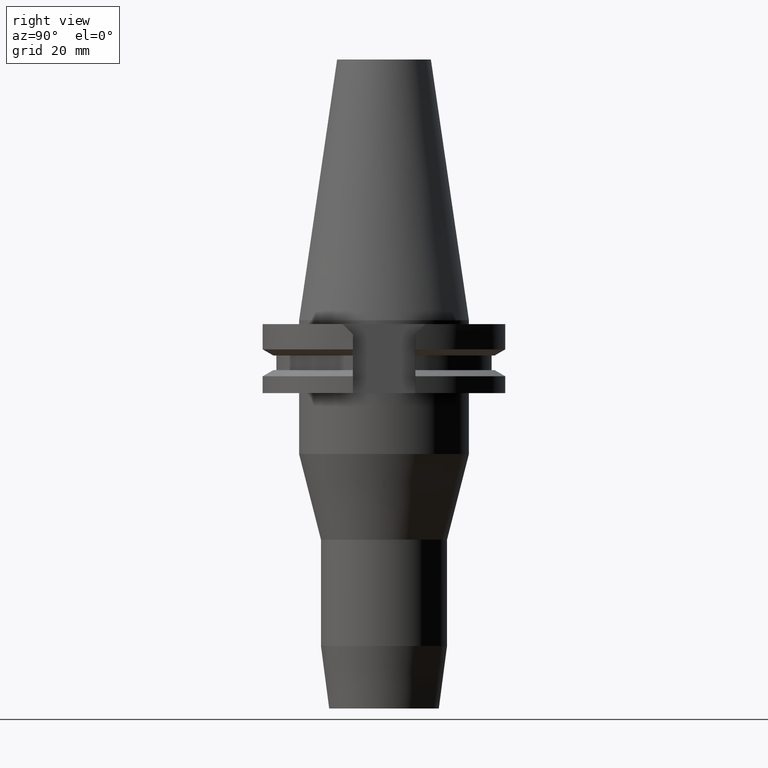
[diagram: clean part render]
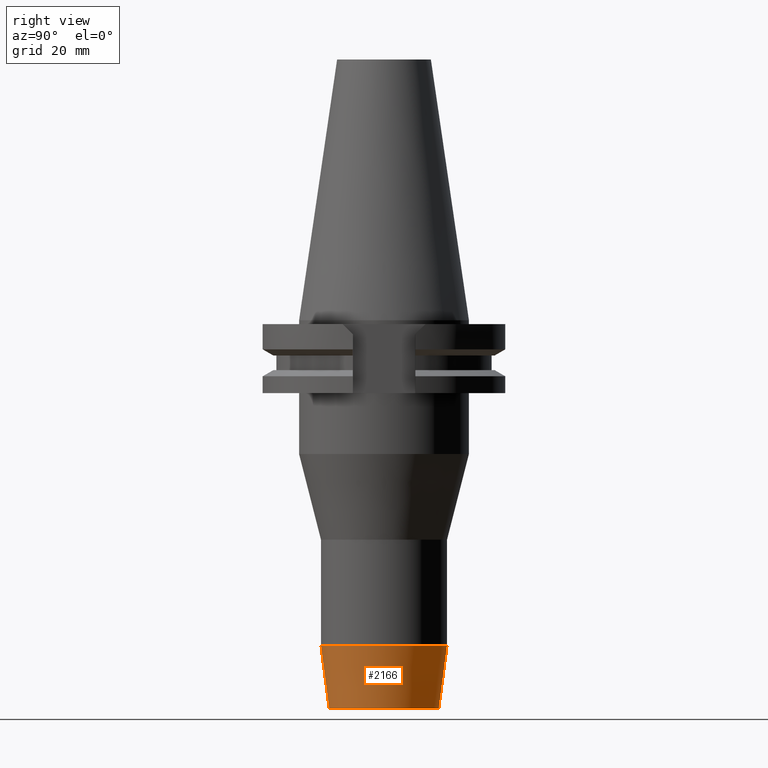
[diagram: same view with one face highlighted and labeled with its STEP entity id]
A machine part, right view. The second image highlights one B-rep face of the part: STEP entity #2166.
In plain terms, the highlighted conical surface has half-angle 7.5 deg.
Its self-contained STEP definition (entity closure, byte-faithful):
#922=DIRECTION('',(0.E0,-1.305261922200E-1,-9.914448613738E-1));
#923=VECTOR('',#922,1.650626562651E1);
#924=CARTESIAN_POINT('',(0.E0,1.65E1,-8.523494776413E1));
#925=LINE('',#924,#923);
#929=CARTESIAN_POINT('',(0.E0,0.E0,-8.523494776413E1));
#930=DIRECTION('',(0.E0,0.E0,1.E0));
#931=DIRECTION('',(0.E0,-1.E0,0.E0));
#932=AXIS2_PLACEMENT_3D('',#929,#930,#931);
#945=DIRECTION('',(0.E0,1.305261922200E-1,-9.914448613738E-1));
#946=VECTOR('',#945,1.650626562651E1);
#947=CARTESIAN_POINT('',(0.E0,-1.65E1,-8.523494776413E1));
#948=LINE('',#947,#946);
#952=CARTESIAN_POINT('',(0.E0,0.E0,-1.016E2));
#953=DIRECTION('',(0.E0,0.E0,1.E0));
#954=DIRECTION('',(0.E0,-1.E0,0.E0));
#955=AXIS2_PLACEMENT_3D('',#952,#953,#954);
#1314=CARTESIAN_POINT('',(0.E0,-1.43455E1,-1.016E2));
#1315=CARTESIAN_POINT('',(0.E0,1.43455E1,-1.016E2));
#1316=VERTEX_POINT('',#1314);
#1317=VERTEX_POINT('',#1315);
#1318=CARTESIAN_POINT('',(0.E0,1.65E1,-8.523494776413E1));
#1319=VERTEX_POINT('',#1318);
#1320=CARTESIAN_POINT('',(0.E0,-1.65E1,-8.523494776413E1));
#1321=VERTEX_POINT('',#1320);
#2152=CARTESIAN_POINT('',(0.E0,0.E0,-9.341747388207E1));
#2153=DIRECTION('',(0.E0,0.E0,1.E0));
#2154=DIRECTION('',(0.E0,1.E0,0.E0));
#2155=AXIS2_PLACEMENT_3D('',#2152,#2153,#2154);
#2156=CONICAL_SURFACE('',#2155,1.542275E1,7.5E0);
#2158=ORIENTED_EDGE('',*,*,#2157,.T.);
#2160=ORIENTED_EDGE('',*,*,#2159,.F.);
#2162=ORIENTED_EDGE('',*,*,#2161,.F.);
#2163=ORIENTED_EDGE('',*,*,#2145,.T.);
#2164=EDGE_LOOP('',(#2158,#2160,#2162,#2163));
#2165=FACE_OUTER_BOUND('',#2164,.F.);
#933=CIRCLE('',#932,1.65E1);
#956=CIRCLE('',#955,1.43455E1);
#2145=EDGE_CURVE('',#1321,#1319,#933,.T.);
#2157=EDGE_CURVE('',#1319,#1317,#925,.T.);
#2159=EDGE_CURVE('',#1316,#1317,#956,.T.);
#2161=EDGE_CURVE('',#1321,#1316,#948,.T.);
#2166=ADVANCED_FACE('',(#2165),#2156,.T.);